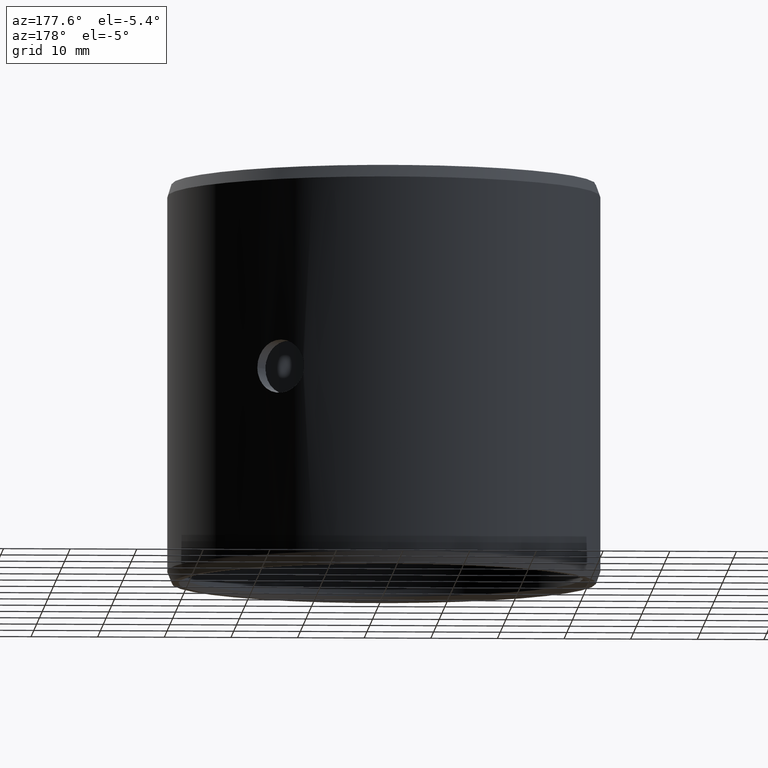
[diagram: clean part render]
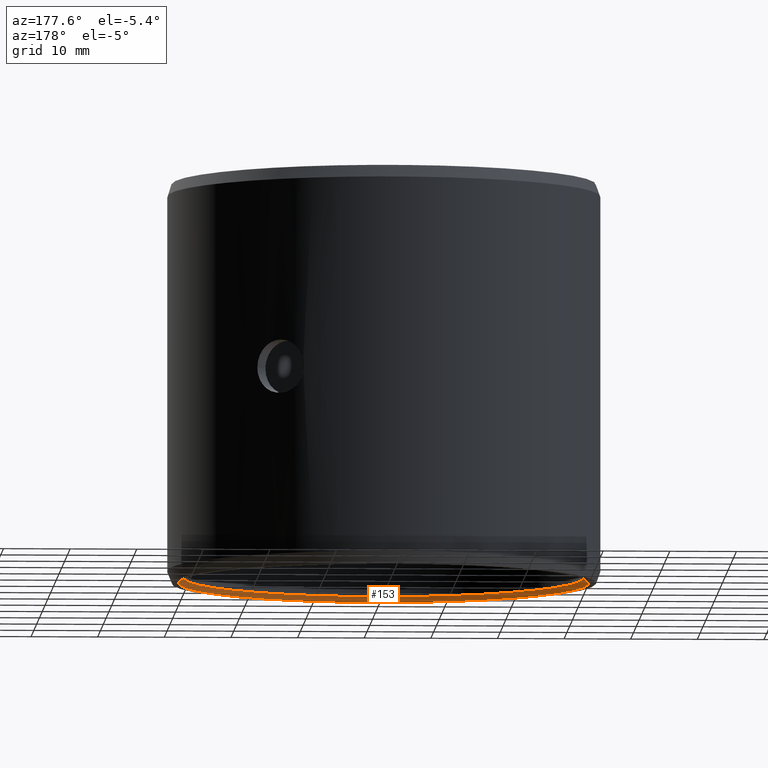
[diagram: same view with one face highlighted and labeled with its STEP entity id]
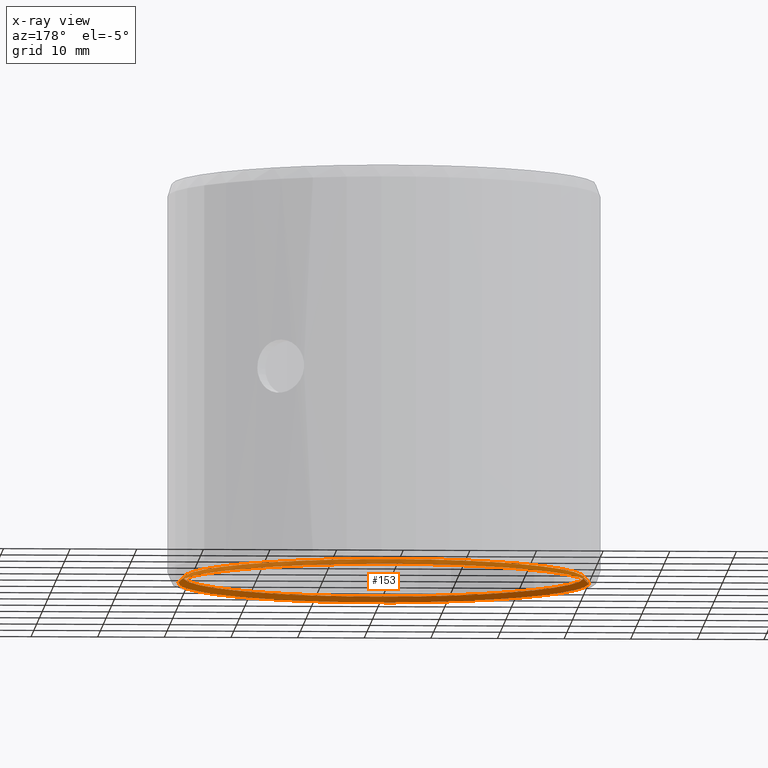
[diagram: x-ray of the same camera — body ghosted, the highlighted face saturated]
A machine part, auxiliary view. The second image highlights one B-rep face of the part: STEP entity #153.
The next image is the same camera in x-ray: the body ghosted, the highlighted face saturated — about 0% of this face is hidden behind the body in this view.
In plain terms, the highlighted conical surface has half-angle 45 deg.
Its self-contained STEP definition (entity closure, byte-faithful):
#153=ADVANCED_FACE('',(#166),#167,.F.);
#166=FACE_OUTER_BOUND('',#192,.T.);
#167=CONICAL_SURFACE('',#193,0.03,0.785398163397448);
#192=EDGE_LOOP('',(#217,#218,#219,#220));
#193=AXIS2_PLACEMENT_3D('',#221,#222,#223);
#217=ORIENTED_EDGE('',*,*,#302,.T.);
#218=ORIENTED_EDGE('',*,*,#303,.F.);
#219=ORIENTED_EDGE('',*,*,#304,.F.);
#220=ORIENTED_EDGE('',*,*,#305,.T.);
#221=CARTESIAN_POINT('',(-6.93889390390723E-018,-6.93889390390723E-018,0.0008));
#222=DIRECTION('',(6.12323399573677E-017,-0.0,-1.0));
#223=DIRECTION('',(-1.0,0.0,-6.12323399573677E-017));
#302=EDGE_CURVE('',#328,#329,#330,.T.);
#303=EDGE_CURVE('',#331,#329,#332,.T.);
#304=EDGE_CURVE('',#333,#331,#334,.T.);
#305=EDGE_CURVE('',#333,#328,#335,.T.);
#328=VERTEX_POINT('',#372);
#329=VERTEX_POINT('',#373);
#330=CIRCLE('',#374,0.0308);
#331=VERTEX_POINT('',#375);
#332=LINE('',#376,#377);
#333=VERTEX_POINT('',#378);
#334=CIRCLE('',#379,0.03);
#335=LINE('',#380,#381);
#372=CARTESIAN_POINT('',(0.000537534118268327,0.0307953090108169,-7.550574538006E-020));
#373=CARTESIAN_POINT('',(-6.93889390390723E-018,0.0308,-1.0842021724855E-019));
#374=AXIS2_PLACEMENT_3D('',#562,#563,#564);
#375=CARTESIAN_POINT('',(-6.93889390390723E-018,0.03,0.0008));
#376=CARTESIAN_POINT('',(-6.93889390390723E-018,0.03,0.0008));
#377=VECTOR('',#565,1.0);
#378=CARTESIAN_POINT('',(0.0005235721931185,0.0299954308546918,0.0008));
#379=AXIS2_PLACEMENT_3D('',#566,#567,#568);
#380=CARTESIAN_POINT('',(0.0005235721931185,0.0299954308546918,0.0008));
#381=VECTOR('',#569,1.0);
#562=CARTESIAN_POINT('',(-6.93889390390723E-018,-6.93889390390723E-018,-1.0842021724855E-019));
#563=DIRECTION('',(6.12323399573677E-017,0.0,-1.0));
#564=DIRECTION('',(-1.0,0.0,-6.12323399573677E-017));
#565=DIRECTION('',(0.0,0.707106781186549,-0.707106781186547));
#566=CARTESIAN_POINT('',(-6.93889390390723E-018,-6.93889390390723E-018,0.0008));
#567=DIRECTION('',(6.12323399573677E-017,0.0,-1.0));
#568=DIRECTION('',(-1.0,0.0,-6.12323399573677E-017));
#569=DIRECTION('',(0.012340714939827,0.706999085398825,-0.707106781186547));